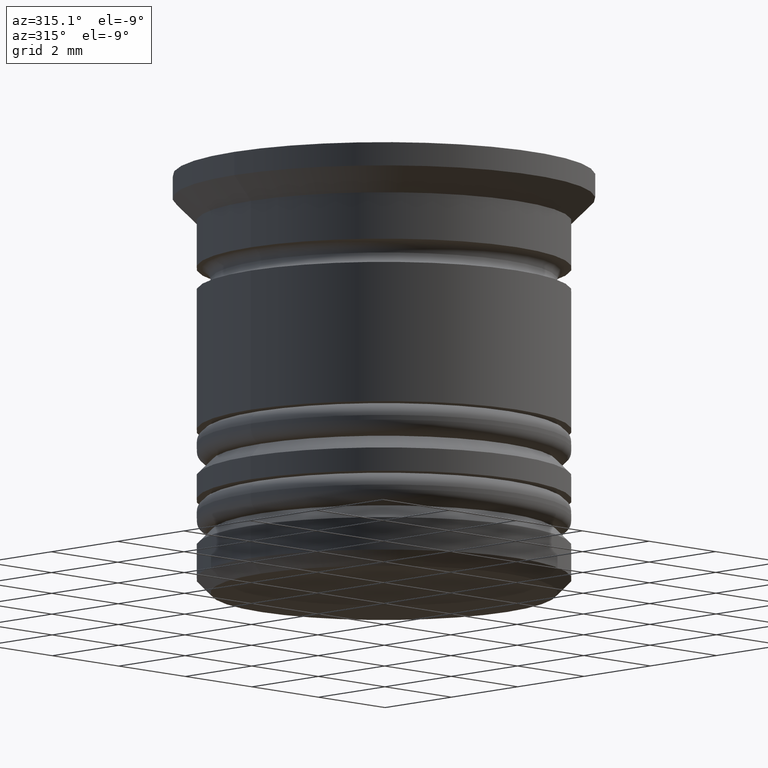
[diagram: clean part render]
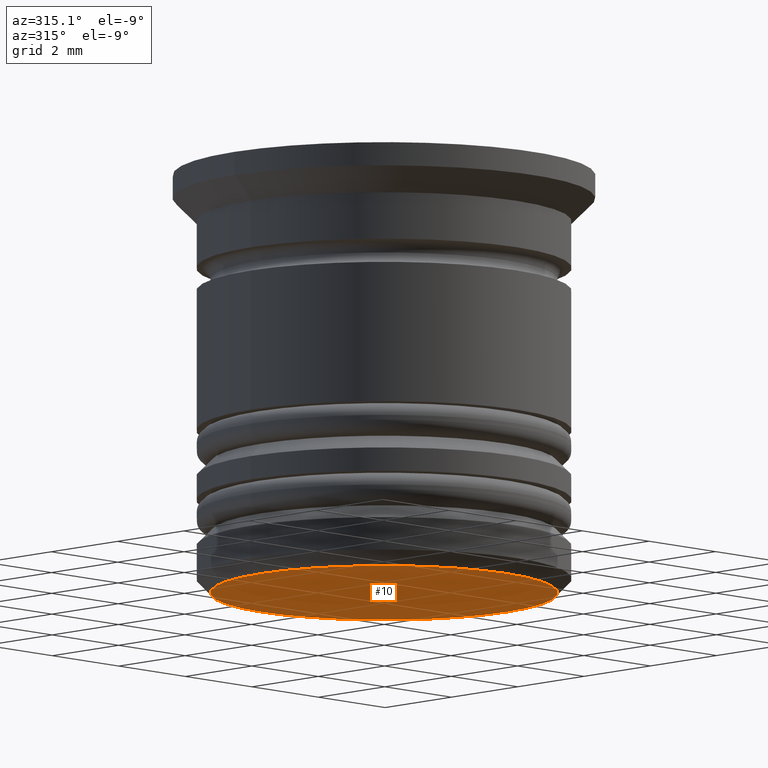
[diagram: same view with one face highlighted and labeled with its STEP entity id]
A machine part, auxiliary view. The second image highlights one B-rep face of the part: STEP entity #10.
In plain terms, the highlighted planar face has unit normal (0, 0, -1).
Its self-contained STEP definition (entity closure, byte-faithful):
#10 = ADVANCED_FACE ( 'NONE', ( #1467 ), #384, .T. ) ;
#92 = DIRECTION ( 'NONE',  ( 0.000000000000000000, 0.000000000000000000, -1.000000000000000000 ) ) ;
#279 = DIRECTION ( 'NONE',  ( -1.000000000000000000, 0.000000000000000000, 0.000000000000000000 ) ) ;
#297 = DIRECTION ( 'NONE',  ( 0.000000000000000000, 0.000000000000000000, -1.000000000000000000 ) ) ;
#384 = PLANE ( 'NONE',  #1972 ) ;
#449 = EDGE_CURVE ( 'NONE', #1634, #1555, #1016, .T. ) ;
#458 = CARTESIAN_POINT ( 'NONE',  ( 0.000000000000000000, 0.000000000000000000, -8.999999999999998224 ) ) ;
#527 = CARTESIAN_POINT ( 'NONE',  ( 3.700000000000002842, 0.000000000000000000, -8.999999999999998224 ) ) ;
#540 = ORIENTED_EDGE ( 'NONE', *, *, #1854, .T. ) ;
#620 = CARTESIAN_POINT ( 'NONE',  ( 0.000000000000000000, 0.000000000000000000, -8.999999999999998224 ) ) ;
#649 = EDGE_LOOP ( 'NONE', ( #540, #1389 ) ) ;
#888 = AXIS2_PLACEMENT_3D ( 'NONE', #458, #1719, #279 ) ;
#912 = AXIS2_PLACEMENT_3D ( 'NONE', #620, #297, #1241 ) ;
#1010 = DIRECTION ( 'NONE',  ( -1.000000000000000000, 0.000000000000000000, -0.000000000000000000 ) ) ;
#1016 = CIRCLE ( 'NONE', #912, 3.700000000000002842 ) ;
#1018 = CARTESIAN_POINT ( 'NONE',  ( -3.700000000000002842, 4.714890176717312473E-16, -8.999999999999998224 ) ) ;
#1019 = CIRCLE ( 'NONE', #888, 3.700000000000002842 ) ;
#1241 = DIRECTION ( 'NONE',  ( -1.000000000000000000, 0.000000000000000000, 0.000000000000000000 ) ) ;
#1389 = ORIENTED_EDGE ( 'NONE', *, *, #449, .T. ) ;
#1467 = FACE_OUTER_BOUND ( 'NONE', #649, .T. ) ;
#1499 = CARTESIAN_POINT ( 'NONE',  ( 0.000000000000000000, 4.000000000000000888, -8.999999999999998224 ) ) ;
#1555 = VERTEX_POINT ( 'NONE', #527 ) ;
#1634 = VERTEX_POINT ( 'NONE', #1018 ) ;
#1719 = DIRECTION ( 'NONE',  ( 0.000000000000000000, 0.000000000000000000, -1.000000000000000000 ) ) ;
#1854 = EDGE_CURVE ( 'NONE', #1555, #1634, #1019, .T. ) ;
#1972 = AXIS2_PLACEMENT_3D ( 'NONE', #1499, #92, #1010 ) ;